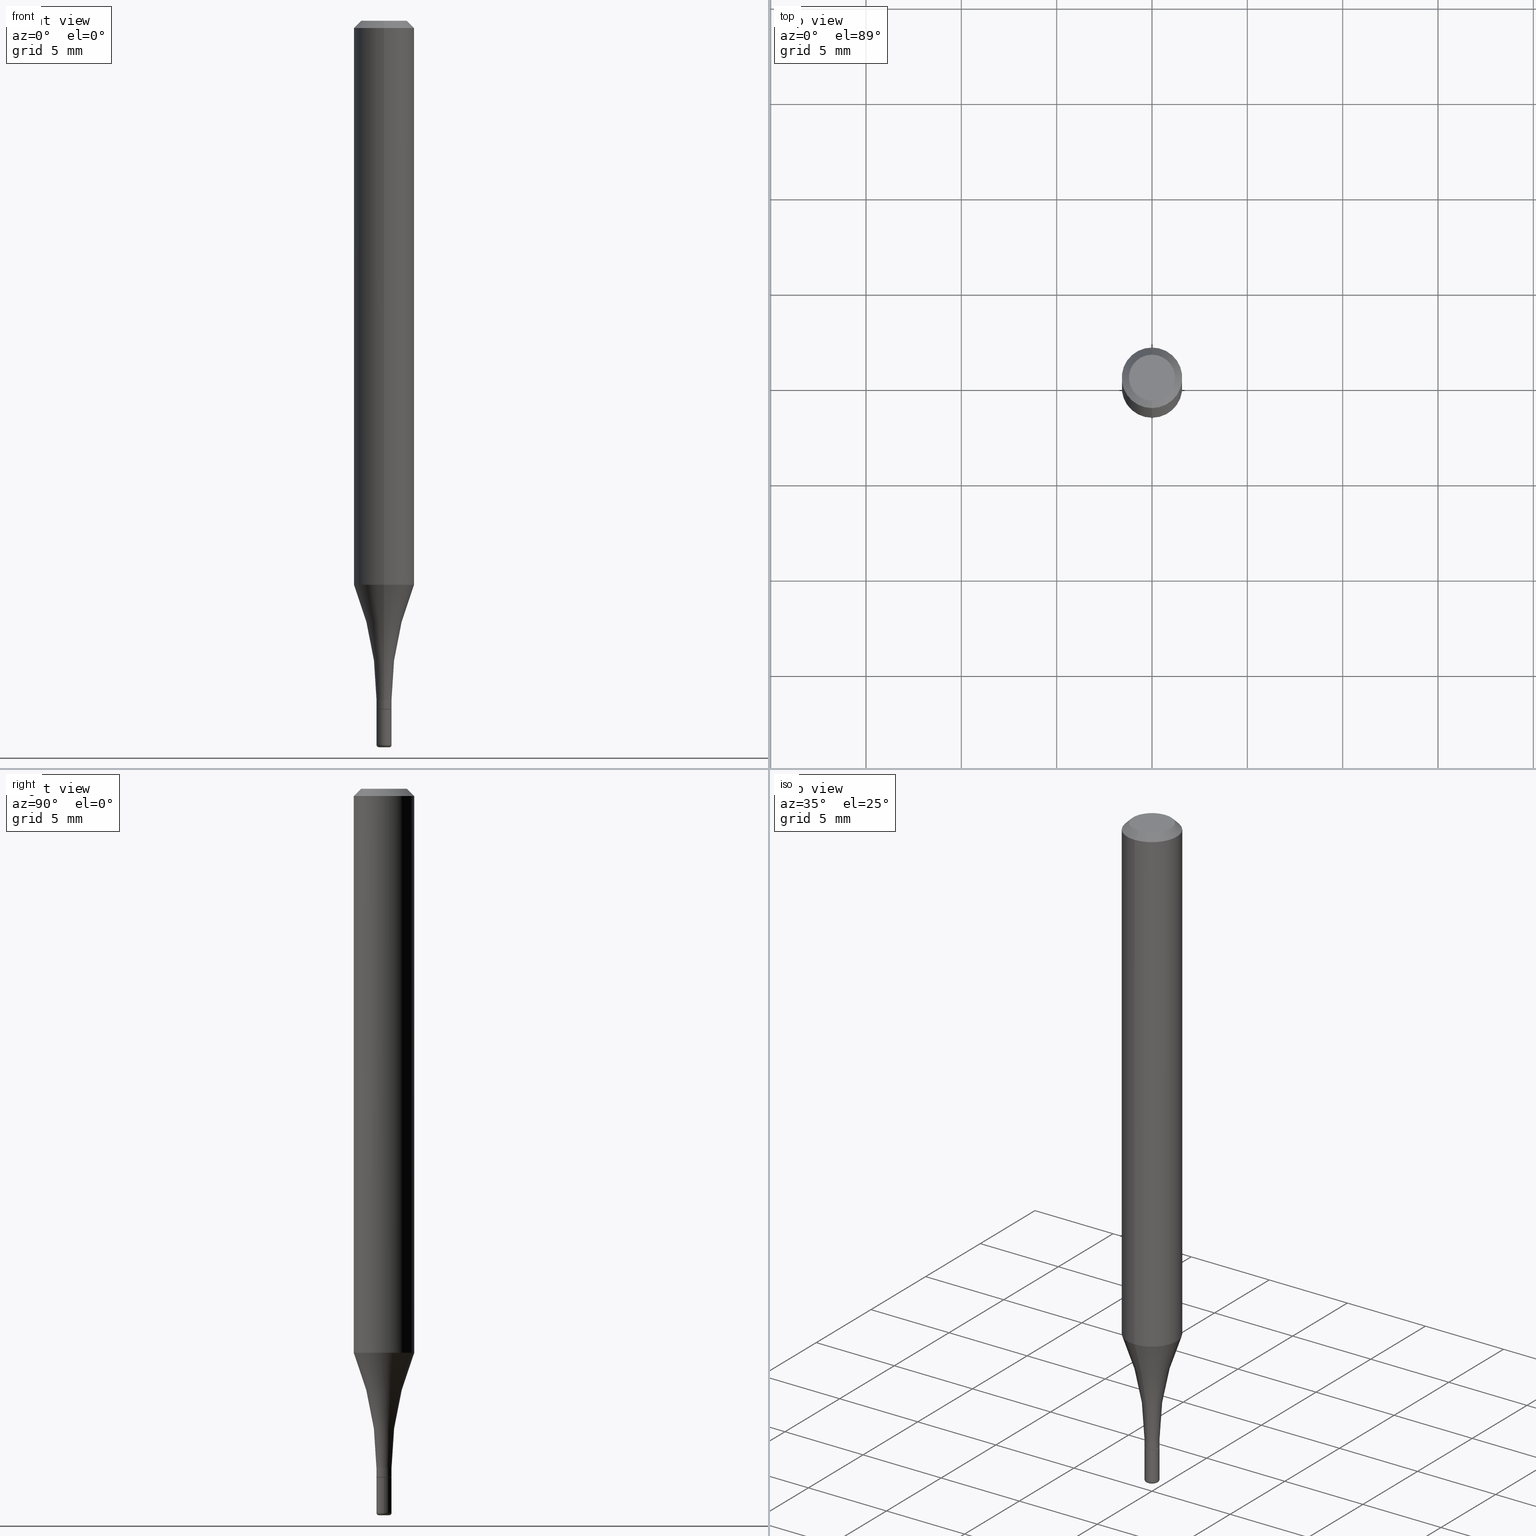
[diagram: canonical four-view strip — front | top / right | iso, engineering-drawing reading convention]
A machine part, canonical four-view strip (front | top / right | iso — engineering-drawing reading convention). The complete STEP part file that produces these views, byte-faithful:
ISO-10303-21;
HEADER;
FILE_DESCRIPTION (( 'STEP AP203' ),
    '1' );
FILE_NAME ('36875.STEP',
    '2024-02-29T19:32:58',
    ( '' ),
    ( '' ),
    'SwSTEP 2.0',
    'SolidWorks 2023',
    '' );
FILE_SCHEMA (( 'CONFIG_CONTROL_DESIGN' ));
ENDSEC;

DATA;
#1 = EDGE_LOOP ( 'NONE', ( #283, #469 ) ) ;
#2 = AXIS2_PLACEMENT_3D ( 'NONE', #54, #495, #130 ) ;
#3 = DIRECTION ( 'NONE',  ( 1.000000000000000000, -6.982962677686265133E-15, 4.883557194083111780E-29 ) ) ;
#4 = ORIENTED_EDGE ( 'NONE', *, *, #415, .T. ) ;
#5 = DIRECTION ( 'NONE',  ( 6.982962677686265922E-15, 1.000000000000000000, -3.483106191921935554E-15 ) ) ;
#6 = ORIENTED_EDGE ( 'NONE', *, *, #306, .F. ) ;
#7 = EDGE_CURVE ( 'NONE', #518, #68, #83, .T. ) ;
#8 = SHAPE_DEFINITION_REPRESENTATION ( #97, #443 ) ;
#9 = DIRECTION ( 'NONE',  ( -2.445210917823208217E-29, 3.491850649655521416E-15, 1.000000000000000000 ) ) ;
#10 = CIRCLE ( 'NONE', #342, 0.01560000000000008775 ) ;
#11 = DIRECTION ( 'NONE',  ( -2.445210917823208217E-29, 3.491850649655521021E-15, 1.000000000000000000 ) ) ;
#12 = ORGANIZATION ( 'UNSPECIFIED', 'UNSPECIFIED', '' ) ;
#13 = DIRECTION ( 'NONE',  ( -6.982962677686266711E-15, -1.000000000000000000, 3.491481338843145583E-15 ) ) ;
#14 = CARTESIAN_POINT ( 'NONE',  ( -4.287811248607203282E-16, -0.06250000000000005551, -0.01499999999999948597 ) ) ;
#15 = FACE_OUTER_BOUND ( 'NONE', #149, .T. ) ;
#16 = DATE_AND_TIME ( #56, #322 ) ;
#17 = DIRECTION ( 'NONE',  ( -2.438088387897960049E-29, 3.491481338843145188E-15, 1.000000000000000000 ) ) ;
#18 = COORDINATED_UNIVERSAL_TIME_OFFSET ( 5, 0, .BEHIND. ) ;
#19 = APPROVAL_PERSON_ORGANIZATION ( #209, #383, #385 ) ;
#20 = VECTOR ( 'NONE', #123, 39.37007874015748143 ) ;
#21 = APPROVAL_DATE_TIME ( #16, #383 ) ;
#22 = LINE ( 'NONE', #239, #268 ) ;
#23 = AXIS2_PLACEMENT_3D ( 'NONE', #154, #414, #447 ) ;
#24 = APPROVAL_PERSON_ORGANIZATION ( #126, #470, #327 ) ;
#25 = CARTESIAN_POINT ( 'NONE',  ( -4.364351673553640100E-16, -0.06250000000000409395, -1.164459708680822603 ) ) ;
#26 = VECTOR ( 'NONE', #176, 39.37007874015748143 ) ;
#27 = CARTESIAN_POINT ( 'NONE',  ( 3.667816376734739913E-31, -5.237775974483178191E-17, -0.01499999999999970281 ) ) ;
#28 = DIRECTION ( 'NONE',  ( -2.445468806185136877E-29, 3.491481338843145188E-15, 1.000000000000000000 ) ) ;
#29 = ORIENTED_EDGE ( 'NONE', *, *, #59, .T. ) ;
#30 = FACE_OUTER_BOUND ( 'NONE', #197, .T. ) ;
#31 = AXIS2_PLACEMENT_3D ( 'NONE', #235, #198, #354 ) ;
#32 = ORIENTED_EDGE ( 'NONE', *, *, #106, .T. ) ;
#33 = CARTESIAN_POINT ( 'NONE',  ( -1.089342177718721665E-16, -0.01560000000000499702, -1.402000000000000579 ) ) ;
#34 =( GEOMETRIC_REPRESENTATION_CONTEXT ( 3 ) GLOBAL_UNCERTAINTY_ASSIGNED_CONTEXT ( ( #393 ) ) GLOBAL_UNIT_ASSIGNED_CONTEXT ( ( #134, #505, #457 ) ) REPRESENTATION_CONTEXT ( 'NONE', 'WORKASPACE' ) );
#35 = ORIENTED_EDGE ( 'NONE', *, *, #301, .F. ) ;
#36 = APPROVAL_STATUS ( 'not_yet_approved' ) ;
#37 = EDGE_CURVE ( 'NONE', #200, #316, #504, .T. ) ;
#38 = CC_DESIGN_PERSON_AND_ORGANIZATION_ASSIGNMENT ( #114, #43, ( #282 ) ) ;
#39 = VECTOR ( 'NONE', #170, 39.37007874015748143 ) ;
#40 = DIRECTION ( 'NONE',  ( -2.445468806185136597E-29, 3.491481338843145583E-15, 1.000000000000000000 ) ) ;
#41 = CARTESIAN_POINT ( 'NONE',  ( -0.01559999999999999928, -4.981306291857210060E-15, -1.421900000000000164 ) ) ;
#42 = VERTEX_POINT ( 'NONE', #66 ) ;
#43 = PERSON_AND_ORGANIZATION_ROLE ( 'creator' ) ;
#44 = ORIENTED_EDGE ( 'NONE', *, *, #121, .T. ) ;
#45 = CIRCLE ( 'NONE', #309, 0.01560000000000017796 ) ;
#46 = CARTESIAN_POINT ( 'NONE',  ( 3.655975865246779122E-29, -5.219764601570503141E-15, -1.495000000000000107 ) ) ;
#47 = ORIENTED_EDGE ( 'NONE', *, *, #106, .F. ) ;
#48 = AXIS2_PLACEMENT_3D ( 'NONE', #46, #488, #3 ) ;
#49 = CARTESIAN_POINT ( 'NONE',  ( 3.668203209277706016E-29, -5.237222008264719754E-15, -1.500000000000000444 ) ) ;
#50 = EDGE_CURVE ( 'NONE', #236, #117, #45, .T. ) ;
#51 = CC_DESIGN_PERSON_AND_ORGANIZATION_ASSIGNMENT ( #486, #413, ( #183 ) ) ;
#52 = CARTESIAN_POINT ( 'NONE',  ( 3.655975865246779122E-29, -5.219764601570503141E-15, -1.495000000000000107 ) ) ;
#53 = CARTESIAN_POINT ( 'NONE',  ( 1.072919530998105076E-16, 0.01509999999999512253, -1.421900000000000164 ) ) ;
#54 = CARTESIAN_POINT ( 'NONE',  ( -4.473285891325789329E-15, -0.6406000000000050543, -1.401999999999998359 ) ) ;
#55 = CIRCLE ( 'NONE', #65, 0.005000000000000179648 ) ;
#56 = CALENDAR_DATE ( 2024, 29, 2 ) ;
#57 = AXIS2_PLACEMENT_3D ( 'NONE', #227, #312, #265 ) ;
#58 = AXIS2_PLACEMENT_3D ( 'NONE', #511, #99, #434 ) ;
#59 = EDGE_CURVE ( 'NONE', #120, #348, #302, .T. ) ;
#60 = FACE_OUTER_BOUND ( 'NONE', #243, .T. ) ;
#61 = CYLINDRICAL_SURFACE ( 'NONE', #429, 0.06250000000000001388 ) ;
#62 = CONICAL_SURFACE ( 'NONE', #118, 0.06250000000000000000, 0.7853981633974488341 ) ;
#63 = ORIENTED_EDGE ( 'NONE', *, *, #409, .F. ) ;
#64 = CARTESIAN_POINT ( 'NONE',  ( 3.475622798593909194E-29, -4.963316513420359082E-15, -1.421400000000000219 ) ) ;
#65 = AXIS2_PLACEMENT_3D ( 'NONE', #211, #329, #125 ) ;
#66 = CARTESIAN_POINT ( 'NONE',  ( -1.089342177718716118E-16, -0.01560000000000505253, -1.421400000000000219 ) ) ;
#67 = CARTESIAN_POINT ( 'NONE',  ( 0.01560000000000017796, -5.328698819342408908E-15, -1.494999999999999662 ) ) ;
#68 = VERTEX_POINT ( 'NONE', #318 ) ;
#69 = ORIENTED_EDGE ( 'NONE', *, *, #421, .T. ) ;
#70 = DIRECTION ( 'NONE',  ( -2.445210917823208217E-29, 3.491850649655521021E-15, 1.000000000000000000 ) ) ;
#71 = ORIENTED_EDGE ( 'NONE', *, *, #448, .F. ) ;
#72 = EDGE_CURVE ( 'NONE', #518, #476, #304, .T. ) ;
#73 = CC_DESIGN_DATE_AND_TIME_ASSIGNMENT ( #80, #249, ( #282 ) ) ;
#74 = VECTOR ( 'NONE', #426, 39.37007874015748143 ) ;
#75 = DIRECTION ( 'NONE',  ( -6.982962677686265133E-15, -1.000000000000000000, 3.491850649655521021E-15 ) ) ;
#76 = ORIENTED_EDGE ( 'NONE', *, *, #387, .T. ) ;
#77 = ORIENTED_EDGE ( 'NONE', *, *, #50, .F. ) ;
#78 = DIRECTION ( 'NONE',  ( 1.000000000000000000, -6.982962677686283277E-15, 0.000000000000000000 ) ) ;
#79 = ORIENTED_EDGE ( 'NONE', *, *, #370, .F. ) ;
#80 = DATE_AND_TIME ( #321, #152 ) ;
#81 = DIRECTION ( 'NONE',  ( 1.000000000000000000, -6.982962677686267499E-15, 4.876176775795935793E-29 ) ) ;
#82 = EDGE_LOOP ( 'NONE', ( #35, #107, #363, #440 ) ) ;
#83 = CIRCLE ( 'NONE', #124, 0.04750000000000000749 ) ;
#84 = DIRECTION ( 'NONE',  ( -6.982962677686265922E-15, -1.000000000000000000, 0.000000000000000000 ) ) ;
#85 = DIRECTION ( 'NONE',  ( 1.000000000000000000, 0.000000000000000000, 0.000000000000000000 ) ) ;
#86 = AXIS2_PLACEMENT_3D ( 'NONE', #287, #446, #84 ) ;
#87 = FACE_OUTER_BOUND ( 'NONE', #115, .T. ) ;
#88 = DIRECTION ( 'NONE',  ( -2.445468806185136597E-29, 3.491481338843145583E-15, 1.000000000000000000 ) ) ;
#89 = ADVANCED_FACE ( 'NONE', ( #391 ), #223, .T. ) ;
#90 = CIRCLE ( 'NONE', #498, 0.04750000000000000749 ) ;
#91 = DIRECTION ( 'NONE',  ( -6.982962677686265133E-15, -1.000000000000000000, 3.491850649655520627E-15 ) ) ;
#92 = PLANE ( 'NONE',  #288 ) ;
#93 = SECURITY_CLASSIFICATION ( '', '', #135 ) ;
#94 = DIRECTION ( 'NONE',  ( -4.851104656540966641E-15, -0.7071067811865503483, -0.7071067811865446862 ) ) ;
#95 = PERSON_AND_ORGANIZATION ( #324, #12 ) ;
#96 = DATE_AND_TIME ( #298, #389 ) ;
#97 = PRODUCT_DEFINITION_SHAPE ( 'NONE', 'NONE',  #282 ) ;
#98 = DIRECTION ( 'NONE',  ( 2.445210917823208217E-29, -3.491850649655521021E-15, -1.000000000000000000 ) ) ;
#99 = DIRECTION ( 'NONE',  ( -2.445210917823208217E-29, 3.491850649655521021E-15, 1.000000000000000000 ) ) ;
#100 = CARTESIAN_POINT ( 'NONE',  ( -1.089342177719064079E-16, -0.01560000000000009469, 5.447287013462645514E-17 ) ) ;
#101 = DIRECTION ( 'NONE',  ( -2.445210917823208217E-29, 3.491850649655521021E-15, 1.000000000000000000 ) ) ;
#102 = DIRECTION ( 'NONE',  ( 2.445210917823207656E-29, -3.491850649655521416E-15, -1.000000000000000000 ) ) ;
#103 = CIRCLE ( 'NONE', #423, 0.06250000000000000000 ) ;
#104 = ORIENTED_EDGE ( 'NONE', *, *, #128, .T. ) ;
#105 = DIRECTION ( 'NONE',  ( -2.445210917823208217E-29, 3.491850649655521021E-15, 1.000000000000000000 ) ) ;
#106 = EDGE_CURVE ( 'NONE', #108, #111, #261, .T. ) ;
#107 = ORIENTED_EDGE ( 'NONE', *, *, #59, .F. ) ;
#108 = VERTEX_POINT ( 'NONE', #109 ) ;
#109 = CARTESIAN_POINT ( 'NONE',  ( 0.01060000000000000178, -5.311241412648193872E-15, -1.500000000000000444 ) ) ;
#110 = ORIENTED_EDGE ( 'NONE', *, *, #254, .T. ) ;
#111 = VERTEX_POINT ( 'NONE', #506 ) ;
#112 = FACE_OUTER_BOUND ( 'NONE', #1, .T. ) ;
#113 = ORIENTED_EDGE ( 'NONE', *, *, #37, .F. ) ;
#114 = PERSON_AND_ORGANIZATION ( #324, #12 ) ;
#115 = EDGE_LOOP ( 'NONE', ( #158, #110, #4, #63 ) ) ;
#116 = CARTESIAN_POINT ( 'NONE',  ( 4.551736765279235337E-15, 0.6405999999999951733, -1.402000000000002800 ) ) ;
#117 = VERTEX_POINT ( 'NONE', #276 ) ;
#118 = AXIS2_PLACEMENT_3D ( 'NONE', #325, #242, #5 ) ;
#119 = LINE ( 'NONE', #162, #258 ) ;
#120 = VERTEX_POINT ( 'NONE', #25 ) ;
#121 = EDGE_CURVE ( 'NONE', #476, #358, #103, .T. ) ;
#122 = CC_DESIGN_PERSON_AND_ORGANIZATION_ASSIGNMENT ( #501, #340, ( #127 ) ) ;
#123 = DIRECTION ( 'NONE',  ( -4.937700262165053702E-15, -0.7071067811866175168, 0.7071067811864775177 ) ) ;
#124 = AXIS2_PLACEMENT_3D ( 'NONE', #277, #438, #75 ) ;
#125 = DIRECTION ( 'NONE',  ( -1.000000000000000000, 7.105427357601058657E-15, 0.000000000000000000 ) ) ;
#126 = PERSON_AND_ORGANIZATION ( #324, #12 ) ;
#127 = PRODUCT_DEFINITION_FORMATION_WITH_SPECIFIED_SOURCE ( 'ANY', '', #183, .NOT_KNOWN. ) ;
#128 = EDGE_CURVE ( 'NONE', #68, #518, #90, .T. ) ;
#129 = CARTESIAN_POINT ( 'NONE',  ( 0.000000000000000000, 0.000000000000000000, 0.000000000000000000 ) ) ;
#130 = DIRECTION ( 'NONE',  ( -6.982962677686264344E-15, -1.000000000000000000, 0.000000000000000000 ) ) ;
#131 = CARTESIAN_POINT ( 'NONE',  ( 0.01059999999999999831, -5.293784005953977259E-15, -1.495000000000000107 ) ) ;
#132 = PLANE ( 'NONE',  #133 ) ;
#133 = AXIS2_PLACEMENT_3D ( 'NONE', #455, #17, #337 ) ;
#134 =( CONVERSION_BASED_UNIT ( 'INCH', #179 ) LENGTH_UNIT ( ) NAMED_UNIT ( #332 ) );
#135 = SECURITY_CLASSIFICATION_LEVEL ( 'unclassified' ) ;
#136 = CIRCLE ( 'NONE', #432, 0.6250000000000001110 ) ;
#137 = FACE_OUTER_BOUND ( 'NONE', #191, .T. ) ;
#138 = DATE_AND_TIME ( #141, #260 ) ;
#139 = ADVANCED_FACE ( 'NONE', ( #60 ), #305, .F. ) ;
#140 =( LENGTH_UNIT ( ) NAMED_UNIT ( * ) SI_UNIT ( $, .METRE. ) );
#141 = CALENDAR_DATE ( 2024, 29, 2 ) ;
#142 = AXIS2_PLACEMENT_3D ( 'NONE', #234, #101, #508 ) ;
#143 = ADVANCED_FACE ( 'NONE', ( #437 ), #428, .T. ) ;
#144 = DIRECTION ( 'NONE',  ( -6.982962677686265922E-15, -1.000000000000000000, 3.483106191921935554E-15 ) ) ;
#145 = ORIENTED_EDGE ( 'NONE', *, *, #244, .T. ) ;
#146 = CARTESIAN_POINT ( 'NONE',  ( 0.000000000000000000, 0.000000000000000000, 0.000000000000000000 ) ) ;
#147 = ORIENTED_EDGE ( 'NONE', *, *, #188, .F. ) ;
#148 = CARTESIAN_POINT ( 'NONE',  ( 3.316907271900976589E-16, 0.04750000000000000749, -2.926173504363019138E-17 ) ) ;
#149 = EDGE_LOOP ( 'NONE', ( #47, #396 ) ) ;
#150 = CIRCLE ( 'NONE', #58, 0.06250000000000001388 ) ;
#151 = ADVANCED_FACE ( 'NONE', ( #30 ), #210, .T. ) ;
#152 = LOCAL_TIME ( 14, 32, 58.00000000000000000, #164 ) ;
#153 = VERTEX_POINT ( 'NONE', #33 ) ;
#154 = CARTESIAN_POINT ( 'NONE',  ( 3.667816376734739913E-31, -5.237775974483178191E-17, -0.01499999999999970281 ) ) ;
#155 = CIRCLE ( 'NONE', #449, 0.01560000000000010163 ) ;
#156 = ORIENTED_EDGE ( 'NONE', *, *, #387, .F. ) ;
#157 = CARTESIAN_POINT ( 'NONE',  ( 3.667816376734739913E-31, -5.237775974483178191E-17, -0.01499999999999970281 ) ) ;
#158 = ORIENTED_EDGE ( 'NONE', *, *, #292, .F. ) ;
#159 = DATE_AND_TIME ( #203, #356 ) ;
#160 = EDGE_CURVE ( 'NONE', #42, #153, #192, .T. ) ;
#161 = EDGE_LOOP ( 'NONE', ( #32, #314, #77, #485 ) ) ;
#162 = CARTESIAN_POINT ( 'NONE',  ( 4.440892098500626162E-16, 0.06250000000000001388, -2.182406656034700885E-16 ) ) ;
#163 = ORIENTED_EDGE ( 'NONE', *, *, #233, .F. ) ;
#164 = COORDINATED_UNIVERSAL_TIME_OFFSET ( 5, 0, .BEHIND. ) ;
#165 = CLOSED_SHELL ( 'NONE', ( #270, #272, #480, #221, #307, #482 ) ) ;
#166 = APPROVAL_PERSON_ORGANIZATION ( #186, #416, #502 ) ;
#167 = DIRECTION ( 'NONE',  ( -2.445210917823208217E-29, 3.491850649655521416E-15, 1.000000000000000000 ) ) ;
#168 = VERTEX_POINT ( 'NONE', #464 ) ;
#169 = EDGE_CURVE ( 'NONE', #236, #200, #22, .T. ) ;
#170 = DIRECTION ( 'NONE',  ( -2.445210917823208217E-29, 3.491850649655521416E-15, 1.000000000000000000 ) ) ;
#171 = VERTEX_POINT ( 'NONE', #398 ) ;
#172 = CARTESIAN_POINT ( 'NONE',  ( -4.287811248607203282E-16, -0.06250000000000005551, -0.01499999999999948597 ) ) ;
#173 = AXIS2_PLACEMENT_3D ( 'NONE', #49, #256, #323 ) ;
#174 = DIRECTION ( 'NONE',  ( -6.982962677686265922E-15, -1.000000000000000000, 3.491850649655521416E-15 ) ) ;
#175 = CC_DESIGN_APPROVAL ( #470, ( #282 ) ) ;
#176 = DIRECTION ( 'NONE',  ( 5.024295867788576727E-15, 0.7071067811866224018, 0.7071067811864726327 ) ) ;
#177 = CARTESIAN_POINT ( 'NONE',  ( 1.089342177719405139E-16, 0.01559999999999503451, -1.421900000000000164 ) ) ;
#178 = FACE_OUTER_BOUND ( 'NONE', #394, .T. ) ;
#179 = LENGTH_MEASURE_WITH_UNIT ( LENGTH_MEASURE( 0.02539999999999999897 ), #140 );
#180 = PERSON_AND_ORGANIZATION_ROLE ( 'creator' ) ;
#181 = AXIS2_PLACEMENT_3D ( 'NONE', #433, #401, #405 ) ;
#182 = ADVANCED_FACE ( 'NONE', ( #266 ), #61, .T. ) ;
#183 = PRODUCT ( '36875', '36875', '', ( #281 ) ) ;
#184 = CC_DESIGN_APPROVAL ( #416, ( #93 ) ) ;
#185 = ADVANCED_FACE ( 'NONE', ( #201 ), #335, .F. ) ;
#186 = PERSON_AND_ORGANIZATION ( #324, #12 ) ;
#187 = APPROVAL_STATUS ( 'not_yet_approved' ) ;
#188 = EDGE_CURVE ( 'NONE', #117, #316, #359, .T. ) ;
#189 = AXIS2_PLACEMENT_3D ( 'NONE', #146, #269, #431 ) ;
#190 = FACE_OUTER_BOUND ( 'NONE', #403, .T. ) ;
#191 = EDGE_LOOP ( 'NONE', ( #76, #466, #71, #246 ) ) ;
#192 = LINE ( 'NONE', #100, #74 ) ;
#193 = AXIS2_PLACEMENT_3D ( 'NONE', #417, #88, #333 ) ;
#194 = AXIS2_PLACEMENT_3D ( 'NONE', #215, #11, #174 ) ;
#195 = ORIENTED_EDGE ( 'NONE', *, *, #7, .F. ) ;
#196 = DIRECTION ( 'NONE',  ( -6.982962677686265922E-15, -1.000000000000000000, 3.491850649655520627E-15 ) ) ;
#197 = EDGE_LOOP ( 'NONE', ( #512, #436, #205, #163 ) ) ;
#198 = DIRECTION ( 'NONE',  ( -2.445210917823208217E-29, 3.491850649655521021E-15, 1.000000000000000000 ) ) ;
#199 = AXIS2_PLACEMENT_3D ( 'NONE', #129, #220, #91 ) ;
#200 = VERTEX_POINT ( 'NONE', #386 ) ;
#201 = FACE_OUTER_BOUND ( 'NONE', #251, .T. ) ;
#202 = EDGE_LOOP ( 'NONE', ( #489, #69, #156, #271 ) ) ;
#203 = CALENDAR_DATE ( 2024, 29, 2 ) ;
#204 = APPLICATION_CONTEXT ( 'configuration controlled 3d designs of mechanical parts and assemblies' ) ;
#205 = ORIENTED_EDGE ( 'NONE', *, *, #328, .T. ) ;
#206 = CARTESIAN_POINT ( 'NONE',  ( -1.054427364330284567E-16, -0.01510000000000505209, -1.421900000000000164 ) ) ;
#207 = EDGE_CURVE ( 'NONE', #348, #120, #150, .T. ) ;
#208 = PLANE ( 'NONE',  #225 ) ;
#209 = PERSON_AND_ORGANIZATION ( #324, #12 ) ;
#210 = CONICAL_SURFACE ( 'NONE', #57, 0.01510000000000008731, 0.7853981633975507526 ) ;
#211 = CARTESIAN_POINT ( 'NONE',  ( -0.01059999999999999831, -5.144447071579932139E-15, -1.495000000000000107 ) ) ;
#212 = ORIENTED_EDGE ( 'NONE', *, *, #7, .T. ) ;
#213 = TOROIDAL_SURFACE ( 'NONE', #48, 0.01059999999999999831, 0.005000000000000177913 ) ;
#214 = CARTESIAN_POINT ( 'NONE',  ( 1.108446667785762895E-16, 0.01560000000000009469, -5.447287013462645514E-17 ) ) ;
#215 = CARTESIAN_POINT ( 'NONE',  ( 3.428547266271562890E-29, -4.895056837058092433E-15, -1.402000000000000579 ) ) ;
#216 = CARTESIAN_POINT ( 'NONE',  ( 3.428185706788139494E-29, -4.895574610817042911E-15, -1.402000000000000579 ) ) ;
#217 = AXIS2_PLACEMENT_3D ( 'NONE', #252, #255, #85 ) ;
#218 = AXIS2_PLACEMENT_3D ( 'NONE', #131, #13, #259 ) ;
#219 = CIRCLE ( 'NONE', #86, 0.01510000000000008731 ) ;
#220 = DIRECTION ( 'NONE',  ( -2.445210917823208217E-29, 3.491850649655521021E-15, 1.000000000000000000 ) ) ;
#221 = ADVANCED_FACE ( 'NONE', ( #190 ), #462, .T. ) ;
#222 = DATE_TIME_ROLE ( 'classification_date' ) ;
#223 = CONICAL_SURFACE ( 'NONE', #418, 0.06250000000000000000, 0.7853981633974488341 ) ;
#224 = AXIS2_PLACEMENT_3D ( 'NONE', #454, #291, #452 ) ;
#225 = AXIS2_PLACEMENT_3D ( 'NONE', #479, #250, #439 ) ;
#226 = DIRECTION ( 'NONE',  ( -6.982962677686265922E-15, -1.000000000000000000, 3.491850649655520627E-15 ) ) ;
#227 = CARTESIAN_POINT ( 'NONE',  ( 3.476845404052820449E-29, -4.965062438745186387E-15, -1.421900000000000164 ) ) ;
#228 = AXIS2_PLACEMENT_3D ( 'NONE', #492, #484, #81 ) ;
#229 = DIRECTION ( 'NONE',  ( -2.445210917823208217E-29, 3.491850649655521021E-15, 1.000000000000000000 ) ) ;
#230 = EDGE_LOOP ( 'NONE', ( #313, #241, #308, #400 ) ) ;
#231 = DIRECTION ( 'NONE',  ( -6.982962677686265133E-15, -1.000000000000000000, 3.491850649655521021E-15 ) ) ;
#232 = CIRCLE ( 'NONE', #373, 0.01510000000000008731 ) ;
#233 = EDGE_CURVE ( 'NONE', #463, #42, #10, .T. ) ;
#234 = CARTESIAN_POINT ( 'NONE',  ( 2.847349593031579707E-29, -4.066119390254809965E-15, -1.164459708680822603 ) ) ;
#235 = CARTESIAN_POINT ( 'NONE',  ( 3.476845404052820449E-29, -4.965062438745186387E-15, -1.421900000000000164 ) ) ;
#236 = VERTEX_POINT ( 'NONE', #67 ) ;
#237 = ADVANCED_FACE ( 'NONE', ( #273 ), #491, .T. ) ;
#238 = ORIENTED_EDGE ( 'NONE', *, *, #409, .T. ) ;
#239 = CARTESIAN_POINT ( 'NONE',  ( 0.01560000000000008775, -1.089342177719063833E-16, 7.606835770241702990E-31 ) ) ;
#240 = CIRCLE ( 'NONE', #224, 0.01560000000000010163 ) ;
#241 = ORIENTED_EDGE ( 'NONE', *, *, #207, .T. ) ;
#242 = DIRECTION ( 'NONE',  ( 2.445210917823208217E-29, -3.491850649655521021E-15, -1.000000000000000000 ) ) ;
#243 = EDGE_LOOP ( 'NONE', ( #212, #104 ) ) ;
#244 = EDGE_CURVE ( 'NONE', #358, #476, #353, .T. ) ;
#245 = CC_DESIGN_DATE_AND_TIME_ASSIGNMENT ( #96, #222, ( #93 ) ) ;
#246 = ORIENTED_EDGE ( 'NONE', *, *, #160, .F. ) ;
#247 = DIRECTION ( 'NONE',  ( -6.982962677686265922E-15, -1.000000000000000000, 0.000000000000000000 ) ) ;
#248 = EDGE_LOOP ( 'NONE', ( #411, #311, #145, #371 ) ) ;
#249 = DATE_TIME_ROLE ( 'creation_date' ) ;
#250 = DIRECTION ( 'NONE',  ( -2.445210917823207656E-29, 3.491850649655521416E-15, 1.000000000000000000 ) ) ;
#251 = EDGE_LOOP ( 'NONE', ( #445, #407, #510, #344 ) ) ;
#252 = CARTESIAN_POINT ( 'NONE',  ( 0.000000000000000000, 0.000000000000000000, 0.000000000000000000 ) ) ;
#253 = CARTESIAN_POINT ( 'NONE',  ( 4.440892098500906207E-16, 0.06249999999999589911, -1.164459708680822825 ) ) ;
#254 = EDGE_CURVE ( 'NONE', #111, #108, #453, .T. ) ;
#255 = DIRECTION ( 'NONE',  ( 0.000000000000000000, 0.000000000000000000, 1.000000000000000000 ) ) ;
#256 = DIRECTION ( 'NONE',  ( -2.445468806185136597E-29, 3.491481338843145583E-15, 1.000000000000000000 ) ) ;
#257 = DIRECTION ( 'NONE',  ( -6.982962677686265922E-15, -1.000000000000000000, 0.000000000000000000 ) ) ;
#258 = VECTOR ( 'NONE', #167, 39.37007874015748143 ) ;
#259 = DIRECTION ( 'NONE',  ( 1.000000000000000000, -6.982962677686276177E-15, 0.000000000000000000 ) ) ;
#260 = LOCAL_TIME ( 14, 32, 58.00000000000000000, #503 ) ;
#261 = CIRCLE ( 'NONE', #381, 0.01060000000000000178 ) ;
#262 = APPROVAL_DATE_TIME ( #138, #416 ) ;
#263 = EDGE_CURVE ( 'NONE', #348, #476, #119, .T. ) ;
#264 = DIRECTION ( 'NONE',  ( 6.982962677686265922E-15, 1.000000000000000000, -3.483106191921935554E-15 ) ) ;
#265 = DIRECTION ( 'NONE',  ( -6.982962677686265922E-15, -1.000000000000000000, 0.000000000000000000 ) ) ;
#266 = FACE_OUTER_BOUND ( 'NONE', #230, .T. ) ;
#267 = CARTESIAN_POINT ( 'NONE',  ( 4.364351673553919652E-16, 0.06249999999999995143, -0.01499999999999992138 ) ) ;
#268 = VECTOR ( 'NONE', #346, 39.37007874015748143 ) ;
#269 = DIRECTION ( 'NONE',  ( -2.445468806185136597E-29, 3.491481338843145583E-15, 1.000000000000000000 ) ) ;
#270 = ADVANCED_FACE ( 'NONE', ( #375 ), #460, .T. ) ;
#271 = ORIENTED_EDGE ( 'NONE', *, *, #328, .F. ) ;
#272 = ADVANCED_FACE ( 'NONE', ( #406 ), #286, .T. ) ;
#273 = FACE_OUTER_BOUND ( 'NONE', #202, .T. ) ;
#274 = EDGE_LOOP ( 'NONE', ( #481, #195, #350, #44 ) ) ;
#275 = ORIENTED_EDGE ( 'NONE', *, *, #263, .T. ) ;
#276 = CARTESIAN_POINT ( 'NONE',  ( -0.01560000000000017796, -4.981306291857208482E-15, -1.494999999999999662 ) ) ;
#277 = CARTESIAN_POINT ( 'NONE',  ( -6.680373485285765149E-45, 9.539817741081743086E-31, 2.732023416300141226E-16 ) ) ;
#278 = DIRECTION ( 'NONE',  ( -2.445210917823208217E-29, 3.491850649655521021E-15, 1.000000000000000000 ) ) ;
#279 = VECTOR ( 'NONE', #430, 39.37007874015748143 ) ;
#280 = ADVANCED_FACE ( 'NONE', ( #362 ), #62, .T. ) ;
#281 = MECHANICAL_CONTEXT ( 'NONE', #204, 'mechanical' ) ;
#282 = PRODUCT_DEFINITION ( 'UNKNOWN', '', #127, #399 ) ;
#283 = ORIENTED_EDGE ( 'NONE', *, *, #347, .F. ) ;
#284 = DIRECTION ( 'NONE',  ( 7.105427357600999492E-15, 1.000000000000000000, 0.000000000000000000 ) ) ;
#285 = EDGE_LOOP ( 'NONE', ( #478, #513, #514, #79 ) ) ;
#286 = CYLINDRICAL_SURFACE ( 'NONE', #228, 0.01560000000000008775 ) ;
#287 = CARTESIAN_POINT ( 'NONE',  ( 3.476845404052820449E-29, -4.965062438745186387E-15, -1.421900000000000164 ) ) ;
#288 = AXIS2_PLACEMENT_3D ( 'NONE', #177, #380, #451 ) ;
#289 = CIRCLE ( 'NONE', #193, 0.01560000000000017796 ) ;
#290 = FACE_OUTER_BOUND ( 'NONE', #516, .T. ) ;
#291 = DIRECTION ( 'NONE',  ( -2.445210917823208217E-29, 3.491850649655521021E-15, 1.000000000000000000 ) ) ;
#292 = EDGE_CURVE ( 'NONE', #111, #117, #55, .T. ) ;
#293 = ADVANCED_FACE ( 'NONE', ( #444 ), #297, .F. ) ;
#294 = EDGE_CURVE ( 'NONE', #168, #472, #232, .T. ) ;
#295 = CARTESIAN_POINT ( 'NONE',  ( 3.475622798593909194E-29, -4.963316513420359082E-15, -1.421400000000000219 ) ) ;
#296 = CARTESIAN_POINT ( 'NONE',  ( 3.840629472727447874E-16, 0.04750000000000000749, 1.073394357713768268E-16 ) ) ;
#297 = TOROIDAL_SURFACE ( 'NONE', #194, 0.6406000000000001693, 0.6250000000000000000 ) ;
#298 = CALENDAR_DATE ( 2024, 29, 2 ) ;
#299 = MANIFOLD_SOLID_BREP ( 'Body-Move/Copy2[1]', #165 ) ;
#300 = ADVANCED_FACE ( 'NONE', ( #112 ), #208, .F. ) ;
#301 = EDGE_CURVE ( 'NONE', #348, #171, #136, .T. ) ;
#302 = CIRCLE ( 'NONE', #142, 0.06250000000000001388 ) ;
#303 = DIRECTION ( 'NONE',  ( -6.982962677686265133E-15, -1.000000000000000000, 3.491850649655520627E-15 ) ) ;
#304 = LINE ( 'NONE', #267, #279 ) ;
#305 = PLANE ( 'NONE',  #365 ) ;
#306 = EDGE_CURVE ( 'NONE', #120, #358, #408, .T. ) ;
#307 = ADVANCED_FACE ( 'NONE', ( #87 ), #213, .T. ) ;
#308 = ORIENTED_EDGE ( 'NONE', *, *, #306, .T. ) ;
#309 = AXIS2_PLACEMENT_3D ( 'NONE', #519, #40, #361 ) ;
#310 = DIRECTION ( 'NONE',  ( -2.445210917823208217E-29, 3.491850649655521021E-15, 1.000000000000000000 ) ) ;
#311 = ORIENTED_EDGE ( 'NONE', *, *, #461, .T. ) ;
#312 = DIRECTION ( 'NONE',  ( -2.445210917823208217E-29, 3.491850649655521021E-15, 1.000000000000000000 ) ) ;
#313 = ORIENTED_EDGE ( 'NONE', *, *, #263, .F. ) ;
#314 = ORIENTED_EDGE ( 'NONE', *, *, #292, .T. ) ;
#315 = DIRECTION ( 'NONE',  ( -6.982962677686265922E-15, -1.000000000000000000, 3.491850649655521416E-15 ) ) ;
#316 = VERTEX_POINT ( 'NONE', #41 ) ;
#317 = APPROVAL_DATE_TIME ( #159, #470 ) ;
#318 = CARTESIAN_POINT ( 'NONE',  ( -3.773273898774340269E-16, -0.04750000000000000749, 4.390652474886513692E-16 ) ) ;
#319 = DIRECTION ( 'NONE',  ( -2.445468806185136597E-29, 3.491481338843145583E-15, 1.000000000000000000 ) ) ;
#320 = ORIENTED_EDGE ( 'NONE', *, *, #345, .F. ) ;
#321 = CALENDAR_DATE ( 2024, 29, 2 ) ;
#322 = LOCAL_TIME ( 14, 32, 58.00000000000000000, #18 ) ;
#323 = DIRECTION ( 'NONE',  ( 1.000000000000000000, -6.982962677686258822E-15, 0.000000000000000000 ) ) ;
#324 = PERSON ( 'UNSPECIFIED', 'UNSPECIFIED', 'UNSPECIFIED', ('UNSPECIFIED'), ('UNSPECIFIED'), ('UNSPECIFIED') ) ;
#325 = CARTESIAN_POINT ( 'NONE',  ( 3.667816376734739913E-31, -5.237775974483178191E-17, -0.01499999999999970281 ) ) ;
#326 = ORIENTED_EDGE ( 'NONE', *, *, #169, .T. ) ;
#327 = APPROVAL_ROLE ( '' ) ;
#328 = EDGE_CURVE ( 'NONE', #472, #42, #369, .T. ) ;
#329 = DIRECTION ( 'NONE',  ( 7.105427357601001859E-15, 1.000000000000000000, -3.491481338843145583E-15 ) ) ;
#330 = CLOSED_SHELL ( 'NONE', ( #456, #280, #237, #499, #185, #293, #143, #151, #300, #139, #89, #182 ) ) ;
#331 = CARTESIAN_POINT ( 'NONE',  ( 4.364351673553919652E-16, 0.06249999999999995143, -0.01499999999999992138 ) ) ;
#332 = DIMENSIONAL_EXPONENTS ( 1.000000000000000000, 0.000000000000000000, 0.000000000000000000, 0.000000000000000000, 0.000000000000000000, 0.000000000000000000, 0.000000000000000000 ) ;
#333 = DIRECTION ( 'NONE',  ( 1.000000000000000000, -6.982962677686265922E-15, 0.000000000000000000 ) ) ;
#334 = DIRECTION ( 'NONE',  ( -2.445210917823208217E-29, 3.491850649655521021E-15, 1.000000000000000000 ) ) ;
#335 = TOROIDAL_SURFACE ( 'NONE', #410, 0.6406000000000001693, 0.6250000000000000000 ) ;
#336 = AXIS2_PLACEMENT_3D ( 'NONE', #355, #500, #226 ) ;
#337 = DIRECTION ( 'NONE',  ( 1.000000000000000000, -6.982962677686265922E-15, 4.876176775795935793E-29 ) ) ;
#338 = APPLICATION_PROTOCOL_DEFINITION ( 'international standard', 'config_control_design', 1994, #204 ) ;
#339 = CC_DESIGN_PERSON_AND_ORGANIZATION_ASSIGNMENT ( #95, #459, ( #93 ) ) ;
#340 = PERSON_AND_ORGANIZATION_ROLE ( 'design_supplier' ) ;
#341 = CARTESIAN_POINT ( 'NONE',  ( 3.668203209277706016E-29, -5.237222008264719754E-15, -1.500000000000000444 ) ) ;
#342 = AXIS2_PLACEMENT_3D ( 'NONE', #64, #310, #467 ) ;
#343 = CARTESIAN_POINT ( 'NONE',  ( -6.680373485285765149E-45, 9.539817741081743086E-31, 2.732023416300141226E-16 ) ) ;
#344 = ORIENTED_EDGE ( 'NONE', *, *, #427, .F. ) ;
#345 = EDGE_CURVE ( 'NONE', #316, #200, #360, .T. ) ;
#346 = DIRECTION ( 'NONE',  ( -2.445468806185136877E-29, 3.491481338843145188E-15, 1.000000000000000000 ) ) ;
#347 = EDGE_CURVE ( 'NONE', #472, #168, #219, .T. ) ;
#348 = VERTEX_POINT ( 'NONE', #253 ) ;
#349 = DIRECTION ( 'NONE',  ( -2.445210917823208217E-29, 3.491850649655521021E-15, 1.000000000000000000 ) ) ;
#350 = ORIENTED_EDGE ( 'NONE', *, *, #72, .T. ) ;
#351 = AXIS2_PLACEMENT_3D ( 'NONE', #392, #70, #196 ) ;
#352 = EDGE_LOOP ( 'NONE', ( #397, #442, #113, #474 ) ) ;
#353 = CIRCLE ( 'NONE', #23, 0.06250000000000000000 ) ;
#354 = DIRECTION ( 'NONE',  ( -6.982962677686265922E-15, -1.000000000000000000, 0.000000000000000000 ) ) ;
#355 = CARTESIAN_POINT ( 'NONE',  ( 0.000000000000000000, 0.000000000000000000, 0.000000000000000000 ) ) ;
#356 = LOCAL_TIME ( 14, 32, 58.00000000000000000, #490 ) ;
#357 = EDGE_CURVE ( 'NONE', #463, #171, #412, .T. ) ;
#358 = VERTEX_POINT ( 'NONE', #172 ) ;
#359 = LINE ( 'NONE', #509, #465 ) ;
#360 = CIRCLE ( 'NONE', #390, 0.01559999999999999928 ) ;
#361 = DIRECTION ( 'NONE',  ( 1.000000000000000000, -6.982962677686265922E-15, 0.000000000000000000 ) ) ;
#362 = FACE_OUTER_BOUND ( 'NONE', #248, .T. ) ;
#363 = ORIENTED_EDGE ( 'NONE', *, *, #427, .T. ) ;
#364 = DIRECTION ( 'NONE',  ( 1.000000000000000000, -7.105427357601001070E-15, 4.926320031295124979E-29 ) ) ;
#365 = AXIS2_PLACEMENT_3D ( 'NONE', #148, #102, #471 ) ;
#366 = ORIENTED_EDGE ( 'NONE', *, *, #345, .T. ) ;
#367 = APPROVAL_STATUS ( 'not_yet_approved' ) ;
#368 = CC_DESIGN_SECURITY_CLASSIFICATION ( #93, ( #127 ) ) ;
#369 = LINE ( 'NONE', #206, #20 ) ;
#370 = EDGE_CURVE ( 'NONE', #171, #153, #155, .T. ) ;
#371 = ORIENTED_EDGE ( 'NONE', *, *, #72, .F. ) ;
#372 = CIRCLE ( 'NONE', #218, 0.005000000000000179648 ) ;
#373 = AXIS2_PLACEMENT_3D ( 'NONE', #402, #278, #247 ) ;
#374 = CARTESIAN_POINT ( 'NONE',  ( -4.364351673553916694E-16, -0.06250000000000001388, 2.182406656034700885E-16 ) ) ;
#375 = FACE_OUTER_BOUND ( 'NONE', #161, .T. ) ;
#376 = AXIS2_PLACEMENT_3D ( 'NONE', #52, #319, #475 ) ;
#377 = DIRECTION ( 'NONE',  ( -6.982962677686265922E-15, -1.000000000000000000, 0.000000000000000000 ) ) ;
#378 = DIRECTION ( 'NONE',  ( 1.000000000000000000, -6.982962677686258822E-15, 0.000000000000000000 ) ) ;
#379 = LINE ( 'NONE', #14, #382 ) ;
#380 = DIRECTION ( 'NONE',  ( 2.438088387897960049E-29, -3.491481338843145188E-15, -1.000000000000000000 ) ) ;
#381 = AXIS2_PLACEMENT_3D ( 'NONE', #341, #497, #378 ) ;
#382 = VECTOR ( 'NONE', #94, 39.37007874015748143 ) ;
#383 = APPROVAL ( #367, 'UNSPECIFIED' ) ;
#384 = VECTOR ( 'NONE', #9, 39.37007874015748143 ) ;
#385 = APPROVAL_ROLE ( '' ) ;
#386 = CARTESIAN_POINT ( 'NONE',  ( 0.01559999999999999928, -5.073471533472975620E-15, -1.421900000000000164 ) ) ;
#387 = EDGE_CURVE ( 'NONE', #42, #463, #507, .T. ) ;
#388 = CARTESIAN_POINT ( 'NONE',  ( 0.000000000000000000, 0.000000000000000000, 0.000000000000000000 ) ) ;
#389 = LOCAL_TIME ( 14, 32, 58.00000000000000000, #458 ) ;
#390 = AXIS2_PLACEMENT_3D ( 'NONE', #520, #441, #78 ) ;
#391 = FACE_OUTER_BOUND ( 'NONE', #274, .T. ) ;
#392 = CARTESIAN_POINT ( 'NONE',  ( 0.000000000000000000, 0.000000000000000000, 0.000000000000000000 ) ) ;
#393 = UNCERTAINTY_MEASURE_WITH_UNIT (LENGTH_MEASURE( 1.000000000000000082E-05 ), #134, 'distance_accuracy_value', 'NONE');
#394 = EDGE_LOOP ( 'NONE', ( #29, #275, #435, #6 ) ) ;
#395 = DIRECTION ( 'NONE',  ( -2.445210917823208217E-29, 3.491850649655521021E-15, 1.000000000000000000 ) ) ;
#396 = ORIENTED_EDGE ( 'NONE', *, *, #254, .F. ) ;
#397 = ORIENTED_EDGE ( 'NONE', *, *, #50, .T. ) ;
#398 = CARTESIAN_POINT ( 'NONE',  ( 2.774669383143507854E-16, 0.01559999999999520451, -1.402000000000000579 ) ) ;
#399 = DESIGN_CONTEXT ( 'detailed design', #487, 'design' ) ;
#400 = ORIENTED_EDGE ( 'NONE', *, *, #121, .F. ) ;
#401 = DIRECTION ( 'NONE',  ( -2.445468806185136597E-29, 3.491481338843145583E-15, 1.000000000000000000 ) ) ;
#402 = CARTESIAN_POINT ( 'NONE',  ( 3.476845404052820449E-29, -4.965062438745186387E-15, -1.421900000000000164 ) ) ;
#403 = EDGE_LOOP ( 'NONE', ( #147, #238, #326, #320 ) ) ;
#404 = APPLICATION_PROTOCOL_DEFINITION ( 'international standard', 'config_control_design', 1994, #487 ) ;
#405 = DIRECTION ( 'NONE',  ( 1.000000000000000000, -6.982962677686283277E-15, 0.000000000000000000 ) ) ;
#406 = FACE_OUTER_BOUND ( 'NONE', #352, .T. ) ;
#407 = ORIENTED_EDGE ( 'NONE', *, *, #301, .T. ) ;
#408 = LINE ( 'NONE', #374, #39 ) ;
#409 = EDGE_CURVE ( 'NONE', #117, #236, #289, .T. ) ;
#410 = AXIS2_PLACEMENT_3D ( 'NONE', #517, #349, #315 ) ;
#411 = ORIENTED_EDGE ( 'NONE', *, *, #128, .F. ) ;
#412 = LINE ( 'NONE', #214, #384 ) ;
#413 = PERSON_AND_ORGANIZATION_ROLE ( 'design_owner' ) ;
#414 = DIRECTION ( 'NONE',  ( -2.445210917823208217E-29, 3.491850649655521021E-15, 1.000000000000000000 ) ) ;
#415 = EDGE_CURVE ( 'NONE', #108, #236, #372, .T. ) ;
#416 = APPROVAL ( #187, 'UNSPECIFIED' ) ;
#417 = CARTESIAN_POINT ( 'NONE',  ( 3.655975865246778562E-29, -5.219764601570502352E-15, -1.494999999999999662 ) ) ;
#418 = AXIS2_PLACEMENT_3D ( 'NONE', #27, #98, #264 ) ;
#419 = CYLINDRICAL_SURFACE ( 'NONE', #199, 0.06250000000000001388 ) ;
#420 = CARTESIAN_POINT ( 'NONE',  ( 1.108446667786107775E-16, 0.01559999999999512471, -1.421400000000000219 ) ) ;
#421 = EDGE_CURVE ( 'NONE', #168, #463, #496, .T. ) ;
#422 = PRODUCT_RELATED_PRODUCT_CATEGORY ( 'detail', '', ( #183 ) ) ;
#423 = AXIS2_PLACEMENT_3D ( 'NONE', #157, #105, #144 ) ;
#424 = PERSON_AND_ORGANIZATION ( #324, #12 ) ;
#425 = CIRCLE ( 'NONE', #2, 0.6250000000000001110 ) ;
#426 = DIRECTION ( 'NONE',  ( -2.445210917823208217E-29, 3.491850649655521416E-15, 1.000000000000000000 ) ) ;
#427 = EDGE_CURVE ( 'NONE', #120, #153, #425, .T. ) ;
#428 = CYLINDRICAL_SURFACE ( 'NONE', #351, 0.01560000000000009469 ) ;
#429 = AXIS2_PLACEMENT_3D ( 'NONE', #388, #229, #303 ) ;
#430 = DIRECTION ( 'NONE',  ( 4.937700262164550409E-15, 0.7071067811865454633, -0.7071067811865495711 ) ) ;
#431 = DIRECTION ( 'NONE',  ( 1.000000000000000000, -6.982962677686267499E-15, 4.876176775795935793E-29 ) ) ;
#432 = AXIS2_PLACEMENT_3D ( 'NONE', #116, #364, #284 ) ;
#433 = CARTESIAN_POINT ( 'NONE',  ( 3.477212095514646075E-29, -4.964537315701069853E-15, -1.421900000000000164 ) ) ;
#434 = DIRECTION ( 'NONE',  ( -6.982962677686265922E-15, -1.000000000000000000, 4.370956789862820361E-15 ) ) ;
#435 = ORIENTED_EDGE ( 'NONE', *, *, #244, .F. ) ;
#436 = ORIENTED_EDGE ( 'NONE', *, *, #294, .T. ) ;
#437 = FACE_OUTER_BOUND ( 'NONE', #285, .T. ) ;
#438 = DIRECTION ( 'NONE',  ( -2.445210917823208217E-29, 3.491850649655521021E-15, 1.000000000000000000 ) ) ;
#439 = DIRECTION ( 'NONE',  ( -6.982962677686265922E-15, -1.000000000000000000, 3.491850649655521416E-15 ) ) ;
#440 = ORIENTED_EDGE ( 'NONE', *, *, #448, .T. ) ;
#441 = DIRECTION ( 'NONE',  ( -2.445468806185136597E-29, 3.491481338843145583E-15, 1.000000000000000000 ) ) ;
#442 = ORIENTED_EDGE ( 'NONE', *, *, #188, .T. ) ;
#443 = ADVANCED_BREP_SHAPE_REPRESENTATION ( '36875', ( #299, #477, #217 ), #34 ) ;
#444 = FACE_OUTER_BOUND ( 'NONE', #82, .T. ) ;
#445 = ORIENTED_EDGE ( 'NONE', *, *, #207, .F. ) ;
#446 = DIRECTION ( 'NONE',  ( -2.445210917823208217E-29, 3.491850649655521021E-15, 1.000000000000000000 ) ) ;
#447 = DIRECTION ( 'NONE',  ( -6.982962677686265922E-15, -1.000000000000000000, 3.483106191921935554E-15 ) ) ;
#448 = EDGE_CURVE ( 'NONE', #153, #171, #240, .T. ) ;
#449 = AXIS2_PLACEMENT_3D ( 'NONE', #216, #334, #257 ) ;
#450 = DIRECTION ( 'NONE',  ( -2.445210917823208217E-29, 3.491850649655521021E-15, 1.000000000000000000 ) ) ;
#451 = DIRECTION ( 'NONE',  ( -1.000000000000000000, 6.982962677686265922E-15, -4.876176775795935793E-29 ) ) ;
#452 = DIRECTION ( 'NONE',  ( -6.982962677686265922E-15, -1.000000000000000000, 0.000000000000000000 ) ) ;
#453 = CIRCLE ( 'NONE', #173, 0.01060000000000000178 ) ;
#454 = CARTESIAN_POINT ( 'NONE',  ( 3.428185706788139494E-29, -4.895574610817042911E-15, -1.402000000000000579 ) ) ;
#455 = CARTESIAN_POINT ( 'NONE',  ( 3.625444894818736588E-29, -5.298454348222087329E-15, -1.500000000000000444 ) ) ;
#456 = ADVANCED_FACE ( 'NONE', ( #178 ), #419, .T. ) ;
#457 =( NAMED_UNIT ( * ) SI_UNIT ( $, .STERADIAN. ) SOLID_ANGLE_UNIT ( ) );
#458 = COORDINATED_UNIVERSAL_TIME_OFFSET ( 5, 0, .BEHIND. ) ;
#459 = PERSON_AND_ORGANIZATION_ROLE ( 'classification_officer' ) ;
#460 = TOROIDAL_SURFACE ( 'NONE', #376, 0.01059999999999999831, 0.005000000000000177913 ) ;
#461 = EDGE_CURVE ( 'NONE', #68, #358, #379, .T. ) ;
#462 = CYLINDRICAL_SURFACE ( 'NONE', #189, 0.01560000000000008775 ) ;
#463 = VERTEX_POINT ( 'NONE', #420 ) ;
#464 = CARTESIAN_POINT ( 'NONE',  ( 1.090683099392107597E-16, 0.01509999999999512253, -1.421900000000000164 ) ) ;
#465 = VECTOR ( 'NONE', #28, 39.37007874015748143 ) ;
#466 = ORIENTED_EDGE ( 'NONE', *, *, #357, .T. ) ;
#467 = DIRECTION ( 'NONE',  ( -6.982962677686265922E-15, -1.000000000000000000, 0.000000000000000000 ) ) ;
#468 = ORIENTED_EDGE ( 'NONE', *, *, #37, .T. ) ;
#469 = ORIENTED_EDGE ( 'NONE', *, *, #294, .F. ) ;
#470 = APPROVAL ( #36, 'UNSPECIFIED' ) ;
#471 = DIRECTION ( 'NONE',  ( 6.982962677686265922E-15, 1.000000000000000000, -3.491850649655521416E-15 ) ) ;
#472 = VERTEX_POINT ( 'NONE', #494 ) ;
#473 = CYLINDRICAL_SURFACE ( 'NONE', #336, 0.01560000000000009469 ) ;
#474 = ORIENTED_EDGE ( 'NONE', *, *, #169, .F. ) ;
#475 = DIRECTION ( 'NONE',  ( 1.000000000000000000, -6.982962677686265133E-15, 4.883557194083111780E-29 ) ) ;
#476 = VERTEX_POINT ( 'NONE', #331 ) ;
#477 = MANIFOLD_SOLID_BREP ( 'Body-Move/Copy2[2]', #330 ) ;
#478 = ORIENTED_EDGE ( 'NONE', *, *, #357, .F. ) ;
#479 = CARTESIAN_POINT ( 'NONE',  ( 3.476845404052820449E-29, -4.965062438745186387E-15, -1.421900000000000164 ) ) ;
#480 = ADVANCED_FACE ( 'NONE', ( #290 ), #92, .F. ) ;
#481 = ORIENTED_EDGE ( 'NONE', *, *, #461, .F. ) ;
#482 = ADVANCED_FACE ( 'NONE', ( #15 ), #132, .F. ) ;
#483 = CC_DESIGN_PERSON_AND_ORGANIZATION_ASSIGNMENT ( #424, #180, ( #127 ) ) ;
#484 = DIRECTION ( 'NONE',  ( -2.445468806185136597E-29, 3.491481338843145583E-15, 1.000000000000000000 ) ) ;
#485 = ORIENTED_EDGE ( 'NONE', *, *, #415, .F. ) ;
#486 = PERSON_AND_ORGANIZATION ( #324, #12 ) ;
#487 = APPLICATION_CONTEXT ( 'configuration controlled 3d designs of mechanical parts and assemblies' ) ;
#488 = DIRECTION ( 'NONE',  ( -2.445468806185136597E-29, 3.491481338843145583E-15, 1.000000000000000000 ) ) ;
#489 = ORIENTED_EDGE ( 'NONE', *, *, #347, .T. ) ;
#490 = COORDINATED_UNIVERSAL_TIME_OFFSET ( 5, 0, .BEHIND. ) ;
#491 = CONICAL_SURFACE ( 'NONE', #31, 0.01510000000000008731, 0.7853981633975507526 ) ;
#492 = CARTESIAN_POINT ( 'NONE',  ( 0.000000000000000000, 0.000000000000000000, 0.000000000000000000 ) ) ;
#493 = CC_DESIGN_APPROVAL ( #383, ( #127 ) ) ;
#494 = CARTESIAN_POINT ( 'NONE',  ( -1.054427364330284567E-16, -0.01510000000000505209, -1.421900000000000164 ) ) ;
#495 = DIRECTION ( 'NONE',  ( -1.000000000000000000, 6.982962677686265922E-15, -4.883557194083112340E-29 ) ) ;
#496 = LINE ( 'NONE', #53, #26 ) ;
#497 = DIRECTION ( 'NONE',  ( -2.445468806185136597E-29, 3.491481338843145583E-15, 1.000000000000000000 ) ) ;
#498 = AXIS2_PLACEMENT_3D ( 'NONE', #343, #395, #231 ) ;
#499 = ADVANCED_FACE ( 'NONE', ( #137 ), #473, .T. ) ;
#500 = DIRECTION ( 'NONE',  ( -2.445210917823208217E-29, 3.491850649655521021E-15, 1.000000000000000000 ) ) ;
#501 = PERSON_AND_ORGANIZATION ( #324, #12 ) ;
#502 = APPROVAL_ROLE ( '' ) ;
#503 = COORDINATED_UNIVERSAL_TIME_OFFSET ( 5, 0, .BEHIND. ) ;
#504 = CIRCLE ( 'NONE', #181, 0.01559999999999999928 ) ;
#505 =( NAMED_UNIT ( * ) PLANE_ANGLE_UNIT ( ) SI_UNIT ( $, .RADIAN. ) );
#506 = CARTESIAN_POINT ( 'NONE',  ( -0.01060000000000000178, -5.135412206533036742E-15, -1.500000000000000444 ) ) ;
#507 = CIRCLE ( 'NONE', #515, 0.01560000000000008775 ) ;
#508 = DIRECTION ( 'NONE',  ( -6.982962677686265922E-15, -1.000000000000000000, 4.370956789862820361E-15 ) ) ;
#509 = CARTESIAN_POINT ( 'NONE',  ( -0.01560000000000008775, 1.108446667785762525E-16, -7.673538740797696279E-31 ) ) ;
#510 = ORIENTED_EDGE ( 'NONE', *, *, #370, .T. ) ;
#511 = CARTESIAN_POINT ( 'NONE',  ( 2.847349593031579707E-29, -4.066119390254809965E-15, -1.164459708680822603 ) ) ;
#512 = ORIENTED_EDGE ( 'NONE', *, *, #421, .F. ) ;
#513 = ORIENTED_EDGE ( 'NONE', *, *, #233, .T. ) ;
#514 = ORIENTED_EDGE ( 'NONE', *, *, #160, .T. ) ;
#515 = AXIS2_PLACEMENT_3D ( 'NONE', #295, #450, #377 ) ;
#516 = EDGE_LOOP ( 'NONE', ( #468, #366 ) ) ;
#517 = CARTESIAN_POINT ( 'NONE',  ( 3.428547266271562890E-29, -4.895056837058092433E-15, -1.402000000000000579 ) ) ;
#518 = VERTEX_POINT ( 'NONE', #296 ) ;
#519 = CARTESIAN_POINT ( 'NONE',  ( 3.655975865246778562E-29, -5.219764601570502352E-15, -1.494999999999999662 ) ) ;
#520 = CARTESIAN_POINT ( 'NONE',  ( 3.477212095514646075E-29, -4.964537315701069853E-15, -1.421900000000000164 ) ) ;
ENDSEC;
END-ISO-10303-21;
